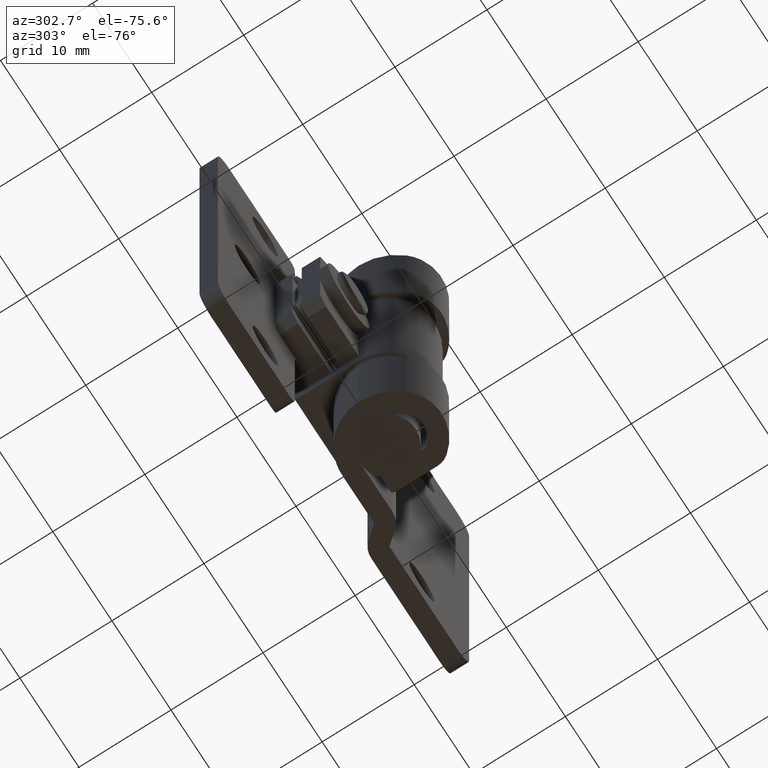
[diagram: clean part render]
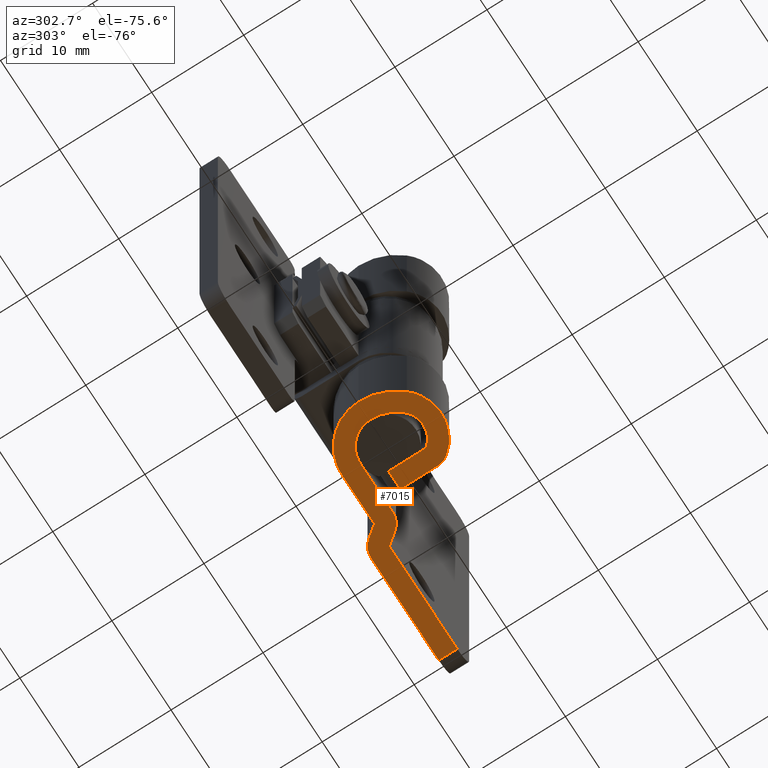
[diagram: same view with one face highlighted and labeled with its STEP entity id]
A machine part, auxiliary view. The second image highlights one B-rep face of the part: STEP entity #7015.
In plain terms, the highlighted face is a freeform B-spline surface patch.
Its self-contained STEP definition (entity closure, byte-faithful):
#5903=CARTESIAN_POINT('',(2.0,1.236068000000000,0.0));
#5904=VERTEX_POINT('',#5903);
#5925=CARTESIAN_POINT('',(4.000000000000100,1.236068000000000,0.0));
#5926=VERTEX_POINT('',#5925);
#5940=CARTESIAN_POINT('',(2.0,1.236068000000000,0.0));
#5941=CARTESIAN_POINT('',(4.000000000000100,1.236068000000000,0.0));
#5942=QUASI_UNIFORM_CURVE('',1,(#5940,#5941),.UNSPECIFIED.,.F.,.U.);
#5943=EDGE_CURVE('',#5904,#5926,#5942,.T.);
#6569=CARTESIAN_POINT('',(19.500000000000000,7.0,0.0));
#6570=VERTEX_POINT('',#6569);
#6591=CARTESIAN_POINT('',(19.500000000000000,5.0,0.0));
#6592=VERTEX_POINT('',#6591);
#6606=CARTESIAN_POINT('',(19.500000000000000,7.0,0.0));
#6607=CARTESIAN_POINT('',(19.500000000000000,5.0,0.0));
#6608=QUASI_UNIFORM_CURVE('',1,(#6606,#6607),.UNSPECIFIED.,.F.,.U.);
#6609=EDGE_CURVE('',#6570,#6592,#6608,.T.);
#6815=CARTESIAN_POINT('',(-6.223774952514130,-6.437639411323876,0.0));
#6816=CARTESIAN_POINT('',(20.723775609655451,-6.437639411323876,0.0));
#6817=CARTESIAN_POINT('',(-6.223774952514130,7.639278464894042,0.0));
#6818=CARTESIAN_POINT('',(20.723775609655451,7.639278464894042,0.0));
#6819=B_SPLINE_SURFACE_WITH_KNOTS('',1,1,((#6815,#6817),(#6816,#6818)),.UNSPECIFIED.,.F.,.F.,.U.,(2,2),(2,2),(0.0,26.947550562169582),(0.0,14.076917876217919),.UNSPECIFIED.);
#6820=CARTESIAN_POINT('',(2.0,-2.817616778261600,0.0));
#6821=VERTEX_POINT('',#6820);
#6822=CARTESIAN_POINT('',(2.0,-2.817616778261600,0.0));
#6823=CARTESIAN_POINT('',(2.0,1.236068000000000,0.0));
#6824=QUASI_UNIFORM_CURVE('',1,(#6822,#6823),.UNSPECIFIED.,.F.,.U.);
#6825=EDGE_CURVE('',#6821,#5904,#6824,.T.);
#6826=ORIENTED_EDGE('',*,*,#6825,.T.);
#6827=ORIENTED_EDGE('',*,*,#5943,.T.);
#6828=CARTESIAN_POINT('',(4.000000000000100,-2.817617000000000,0.0));
#6829=VERTEX_POINT('',#6828);
#6830=CARTESIAN_POINT('',(4.000000000000100,1.236068000000000,0.0));
#6831=CARTESIAN_POINT('',(4.000000000000100,-2.817617000000000,0.0));
#6832=QUASI_UNIFORM_CURVE('',1,(#6830,#6831),.UNSPECIFIED.,.F.,.U.);
#6833=EDGE_CURVE('',#5926,#6829,#6832,.T.);
#6834=ORIENTED_EDGE('',*,*,#6833,.T.);
#6835=CARTESIAN_POINT('',(3.582869031155540,-4.040124926440040,0.0));
#6836=VERTEX_POINT('',#6835);
#6837=CARTESIAN_POINT('',(4.000000000000100,-2.817617000000000,0.0));
#6838=CARTESIAN_POINT('',(4.000000000000001,-3.500035428253716,0.0));
#6839=CARTESIAN_POINT('',(3.582869031155539,-4.040124926440039,0.0));
#6847=(BOUNDED_CURVE()B_SPLINE_CURVE(2,(#6837,#6838,#6839),.UNSPECIFIED.,.F.,.U.)CURVE()GEOMETRIC_REPRESENTATION_ITEM()QUASI_UNIFORM_CURVE()RATIONAL_B_SPLINE_CURVE((1.0,0.946423403022603,1.0))REPRESENTATION_ITEM(''));
#6848=EDGE_CURVE('',#6829,#6836,#6847,.T.);
#6849=ORIENTED_EDGE('',*,*,#6848,.T.);
#6850=CARTESIAN_POINT('',(-3.428838078900190,-4.228837874641685,0.0));
#6851=VERTEX_POINT('',#6850);
#6852=CARTESIAN_POINT('',(3.582869031155540,-4.040124926440040,0.0));
#6853=CARTESIAN_POINT('',(2.269562966198088,-5.740556318396925,0.0));
#6854=CARTESIAN_POINT('',(0.121797074364562,-5.798361273919577,0.0));
#6855=CARTESIAN_POINT('',(-2.025968817468964,-5.856166229442229,0.0));
#6856=CARTESIAN_POINT('',(-3.428838078900197,-4.228837874641690,0.0));
#6864=(BOUNDED_CURVE()B_SPLINE_CURVE(2,(#6852,#6853,#6854,#6855,#6856),.UNSPECIFIED.,.F.,.U.)B_SPLINE_CURVE_WITH_KNOTS((3,2,3),(0.0,0.500000000000000,1.0),.UNSPECIFIED.)CURVE()GEOMETRIC_REPRESENTATION_ITEM()RATIONAL_B_SPLINE_CURVE((1.0,0.903417322713607,1.0,0.903417322713607,1.0))REPRESENTATION_ITEM(''));
#6865=EDGE_CURVE('',#6836,#6851,#6864,.T.);
#6866=ORIENTED_EDGE('',*,*,#6865,.T.);
#6867=CARTESIAN_POINT('',(-4.999999999999890,-7.931303E-016,0.0));
#6868=VERTEX_POINT('',#6867);
#6869=CARTESIAN_POINT('',(-3.428838078900190,-4.228837874641685,0.0));
#6870=CARTESIAN_POINT('',(-4.999999999999888,-2.406289878639782,0.0));
#6871=CARTESIAN_POINT('',(-4.999999999999888,0.0,0.0));
#6879=(BOUNDED_CURVE()B_SPLINE_CURVE(2,(#6869,#6870,#6871),.UNSPECIFIED.,.F.,.U.)CURVE()GEOMETRIC_REPRESENTATION_ITEM()QUASI_UNIFORM_CURVE()RATIONAL_B_SPLINE_CURVE((1.0,0.937392652814265,1.0))REPRESENTATION_ITEM(''));
#6880=EDGE_CURVE('',#6851,#6868,#6879,.T.);
#6881=ORIENTED_EDGE('',*,*,#6880,.T.);
#6882=CARTESIAN_POINT('',(-9.184548E-016,5.0,0.0));
#6883=VERTEX_POINT('',#6882);
#6884=CARTESIAN_POINT('',(-4.999999999999890,-7.931303E-016,0.0));
#6885=CARTESIAN_POINT('',(-5.000000000000001,5.000000000000001,0.0));
#6886=CARTESIAN_POINT('',(0.0,5.0,0.0));
#6894=(BOUNDED_CURVE()B_SPLINE_CURVE(2,(#6884,#6885,#6886),.UNSPECIFIED.,.F.,.U.)CURVE()GEOMETRIC_REPRESENTATION_ITEM()QUASI_UNIFORM_CURVE()RATIONAL_B_SPLINE_CURVE((1.0,0.707106781186548,1.0))REPRESENTATION_ITEM(''));
#6895=EDGE_CURVE('',#6868,#6883,#6894,.T.);
#6896=ORIENTED_EDGE('',*,*,#6895,.T.);
#6897=CARTESIAN_POINT('',(5.471573000000110,5.0,0.0));
#6898=VERTEX_POINT('',#6897);
#6899=CARTESIAN_POINT('',(-9.184548E-016,5.0,0.0));
#6900=CARTESIAN_POINT('',(5.471573000000110,5.0,0.0));
#6901=QUASI_UNIFORM_CURVE('',1,(#6899,#6900),.UNSPECIFIED.,.F.,.U.);
#6902=EDGE_CURVE('',#6883,#6898,#6901,.T.);
#6903=ORIENTED_EDGE('',*,*,#6902,.T.);
#6904=CARTESIAN_POINT('',(6.417989000000110,6.223618000000000,0.0));
#6905=VERTEX_POINT('',#6904);
#6906=CARTESIAN_POINT('',(5.471573000000110,5.0,0.0));
#6907=CARTESIAN_POINT('',(6.417989000000110,6.223618000000000,0.0));
#6908=QUASI_UNIFORM_CURVE('',1,(#6906,#6907),.UNSPECIFIED.,.F.,.U.);
#6909=EDGE_CURVE('',#6898,#6905,#6908,.T.);
#6910=ORIENTED_EDGE('',*,*,#6909,.T.);
#6911=CARTESIAN_POINT('',(8.000000000000101,7.0,0.0));
#6912=VERTEX_POINT('',#6911);
#6913=CARTESIAN_POINT('',(6.417989000000110,6.223618000000000,0.0));
#6914=CARTESIAN_POINT('',(7.018487288000946,7.0,0.0));
#6915=CARTESIAN_POINT('',(8.000000000000101,7.0,0.0));
#6923=(BOUNDED_CURVE()B_SPLINE_CURVE(2,(#6913,#6914,#6915),.UNSPECIFIED.,.F.,.U.)CURVE()GEOMETRIC_REPRESENTATION_ITEM()QUASI_UNIFORM_CURVE()RATIONAL_B_SPLINE_CURVE((1.0,0.897721842839173,1.0))REPRESENTATION_ITEM(''));
#6924=EDGE_CURVE('',#6905,#6912,#6923,.T.);
#6925=ORIENTED_EDGE('',*,*,#6924,.T.);
#6926=CARTESIAN_POINT('',(8.000000000000101,7.0,0.0));
#6927=CARTESIAN_POINT('',(19.500000000000000,7.0,0.0));
#6928=QUASI_UNIFORM_CURVE('',1,(#6926,#6927),.UNSPECIFIED.,.F.,.U.);
#6929=EDGE_CURVE('',#6912,#6570,#6928,.T.);
#6930=ORIENTED_EDGE('',*,*,#6929,.T.);
#6931=ORIENTED_EDGE('',*,*,#6609,.T.);
#6932=CARTESIAN_POINT('',(8.000000000000101,5.0,0.0));
#6933=VERTEX_POINT('',#6932);
#6934=CARTESIAN_POINT('',(19.500000000000000,5.0,0.0));
#6935=CARTESIAN_POINT('',(8.000000000000101,5.0,0.0));
#6936=QUASI_UNIFORM_CURVE('',1,(#6934,#6935),.UNSPECIFIED.,.F.,.U.);
#6937=EDGE_CURVE('',#6592,#6933,#6936,.T.);
#6938=ORIENTED_EDGE('',*,*,#6937,.T.);
#6939=CARTESIAN_POINT('',(7.053585000000000,3.776382000000000,0.0));
#6940=VERTEX_POINT('',#6939);
#6941=CARTESIAN_POINT('',(8.000000000000101,5.0,0.0));
#6942=CARTESIAN_POINT('',(7.053585000000000,3.776382000000000,0.0));
#6943=QUASI_UNIFORM_CURVE('',1,(#6941,#6942),.UNSPECIFIED.,.F.,.U.);
#6944=EDGE_CURVE('',#6933,#6940,#6943,.T.);
#6945=ORIENTED_EDGE('',*,*,#6944,.T.);
#6946=CARTESIAN_POINT('',(5.471573000000110,3.0,0.0));
#6947=VERTEX_POINT('',#6946);
#6948=CARTESIAN_POINT('',(7.053585000000000,3.776382000000000,0.0));
#6949=CARTESIAN_POINT('',(6.453086091578213,3.000000000000000,0.0));
#6950=CARTESIAN_POINT('',(5.471573000000110,3.0,0.0));
#6958=(BOUNDED_CURVE()B_SPLINE_CURVE(2,(#6948,#6949,#6950),.UNSPECIFIED.,.F.,.U.)CURVE()GEOMETRIC_REPRESENTATION_ITEM()QUASI_UNIFORM_CURVE()RATIONAL_B_SPLINE_CURVE((1.0,0.897721775454136,1.0))REPRESENTATION_ITEM(''));
#6959=EDGE_CURVE('',#6940,#6947,#6958,.T.);
#6960=ORIENTED_EDGE('',*,*,#6959,.T.);
#6961=CARTESIAN_POINT('',(0.0,3.0,0.0));
#6962=VERTEX_POINT('',#6961);
#6963=CARTESIAN_POINT('',(5.471573000000110,3.0,0.0));
#6964=CARTESIAN_POINT('',(0.0,3.0,0.0));
#6965=QUASI_UNIFORM_CURVE('',1,(#6963,#6964),.UNSPECIFIED.,.F.,.U.);
#6966=EDGE_CURVE('',#6947,#6962,#6965,.T.);
#6967=ORIENTED_EDGE('',*,*,#6966,.T.);
#6968=CARTESIAN_POINT('',(-3.0,-3.673819E-016,0.0));
#6969=VERTEX_POINT('',#6968);
#6970=CARTESIAN_POINT('',(-3.0,0.0,0.0));
#6971=CARTESIAN_POINT('',(-3.0,3.0,0.0));
#6972=CARTESIAN_POINT('',(0.0,3.0,0.0));
#6980=(BOUNDED_CURVE()B_SPLINE_CURVE(2,(#6970,#6971,#6972),.UNSPECIFIED.,.F.,.U.)CURVE()GEOMETRIC_REPRESENTATION_ITEM()QUASI_UNIFORM_CURVE()RATIONAL_B_SPLINE_CURVE((1.0,0.707106781186548,1.0))REPRESENTATION_ITEM(''));
#6981=EDGE_CURVE('',#6969,#6962,#6980,.T.);
#6982=ORIENTED_EDGE('',*,*,#6981,.F.);
#6983=CARTESIAN_POINT('',(-1.914018155314400,-2.922958517041125,0.0));
#6984=VERTEX_POINT('',#6983);
#6985=CARTESIAN_POINT('',(-1.914018155314402,-2.922958517041126,0.0));
#6986=CARTESIAN_POINT('',(-2.999999999999888,-1.663219474830637,0.0));
#6987=CARTESIAN_POINT('',(-3.0,-3.673819E-016,0.0));
#6995=(BOUNDED_CURVE()B_SPLINE_CURVE(2,(#6985,#6986,#6987),.UNSPECIFIED.,.F.,.U.)CURVE()GEOMETRIC_REPRESENTATION_ITEM()QUASI_UNIFORM_CURVE()RATIONAL_B_SPLINE_CURVE((1.0,0.937392657279292,1.0))REPRESENTATION_ITEM(''));
#6996=EDGE_CURVE('',#6984,#6969,#6995,.T.);
#6997=ORIENTED_EDGE('',*,*,#6996,.F.);
#6998=CARTESIAN_POINT('',(2.000000000000005,-2.817616778261605,0.0));
#6999=CARTESIAN_POINT('',(1.266896995045724,-3.766817852651986,0.0));
#7000=CARTESIAN_POINT('',(0.067988528607418,-3.799085244852178,0.0));
#7001=CARTESIAN_POINT('',(-1.130919937830887,-3.831352637052369,0.0));
#7002=CARTESIAN_POINT('',(-1.914018155314400,-2.922958517041125,0.0));
#7010=(BOUNDED_CURVE()B_SPLINE_CURVE(2,(#6998,#6999,#7000,#7001,#7002),.UNSPECIFIED.,.F.,.U.)B_SPLINE_CURVE_WITH_KNOTS((3,2,3),(0.0,0.500000000000000,1.0),.UNSPECIFIED.)CURVE()GEOMETRIC_REPRESENTATION_ITEM()RATIONAL_B_SPLINE_CURVE((1.0,0.903417318692444,1.0,0.903417318692444,1.0))REPRESENTATION_ITEM(''));
#7011=EDGE_CURVE('',#6821,#6984,#7010,.T.);
#7012=ORIENTED_EDGE('',*,*,#7011,.F.);
#7013=EDGE_LOOP('',(#6826,#6827,#6834,#6849,#6866,#6881,#6896,#6903,#6910,#6925,#6930,#6931,#6938,#6945,#6960,#6967,#6982,#6997,#7012));
#7014=FACE_OUTER_BOUND('',#7013,.T.);
#7015=ADVANCED_FACE('',(#7014),#6819,.F.);